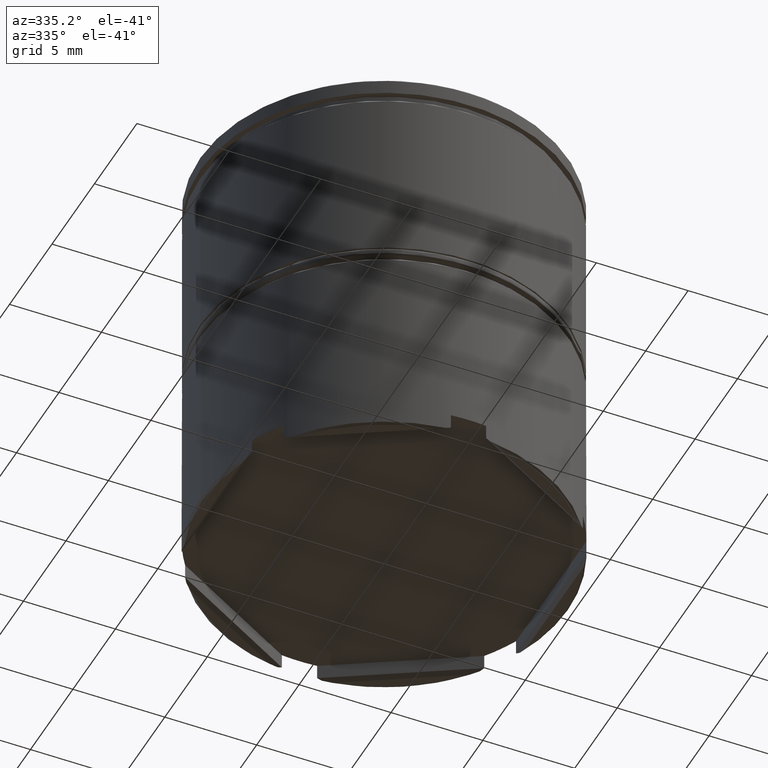
[diagram: clean part render]
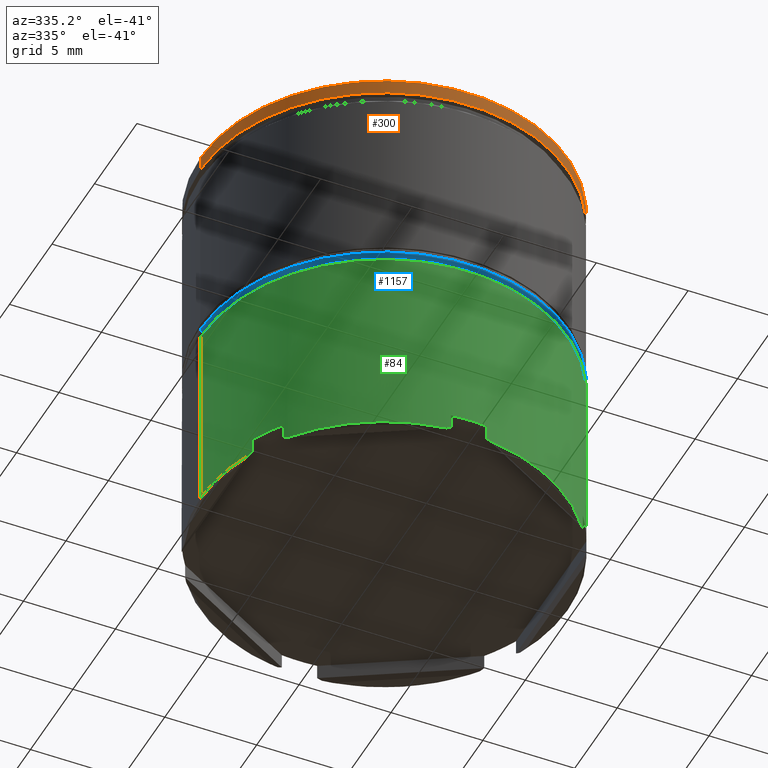
[diagram: same view with three faces highlighted in distinct colors, each labeled with its STEP entity id]
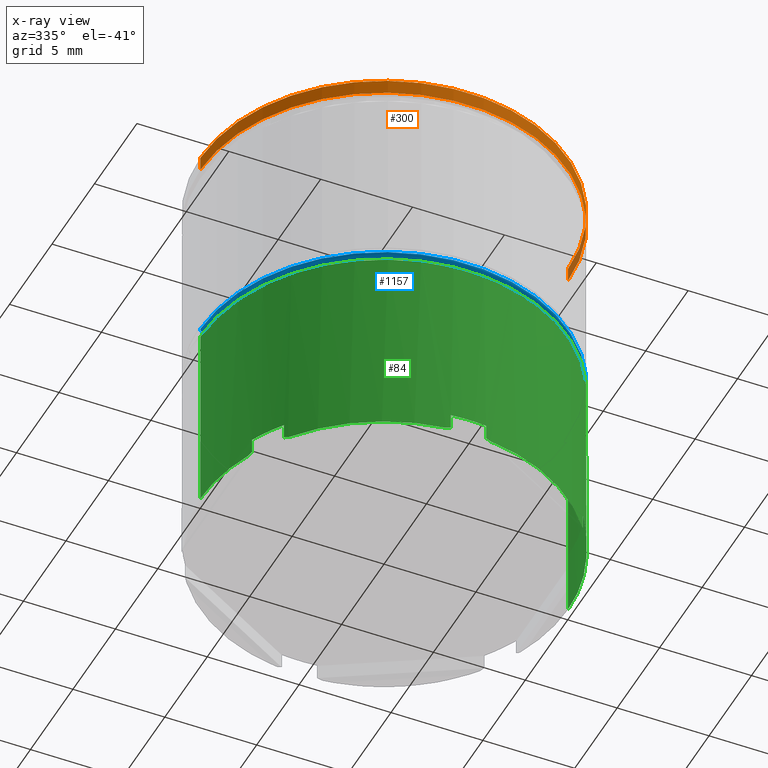
[diagram: x-ray of the same camera — body ghosted, the three highlighted faces saturated]
A machine part, auxiliary view with three faces highlighted in distinct colors.
The next image is the same camera in x-ray (body ghosted, the three faces saturated) — at least one of them is partly hidden behind the body in this view.
Their STEP definitions:

[orange] entity #300 — the highlighted cylindrical surface (partial cylindrical patch) has radius 10 mm, axis along (-0, -0, 1).
#11 = EDGE_CURVE ( 'NONE', #779, #558, #1085, .T. ) ;
#36 = EDGE_CURVE ( 'NONE', #779, #920, #1422, .T. ) ;
#54 = EDGE_CURVE ( 'NONE', #558, #92, #524, .T. ) ;
#92 = VERTEX_POINT ( 'NONE', #667 ) ;
#136 = DIRECTION ( 'NONE',  ( 1.000000000000000000, 0.000000000000000000, 0.000000000000000000 ) ) ;
#148 = EDGE_LOOP ( 'NONE', ( #706, #595, #862, #1581 ) ) ;
#175 = DIRECTION ( 'NONE',  ( 0.000000000000000000, 0.000000000000000000, -1.000000000000000000 ) ) ;
#300 = ADVANCED_FACE ( 'NONE', ( #515 ), #772, .T. ) ;
#388 = AXIS2_PLACEMENT_3D ( 'NONE', #1590, #477, #994 ) ;
#477 = DIRECTION ( 'NONE',  ( -0.000000000000000000, -0.000000000000000000, 1.000000000000000000 ) ) ;
#494 = EDGE_CURVE ( 'NONE', #92, #920, #526, .T. ) ;
#515 = FACE_OUTER_BOUND ( 'NONE', #148, .T. ) ;
#524 = LINE ( 'NONE', #918, #1139 ) ;
#526 = CIRCLE ( 'NONE', #1447, 10.00000000000000000 ) ;
#558 = VERTEX_POINT ( 'NONE', #1318 ) ;
#595 = ORIENTED_EDGE ( 'NONE', *, *, #11, .T. ) ;
#651 = DIRECTION ( 'NONE',  ( -0.000000000000000000, -0.000000000000000000, 1.000000000000000000 ) ) ;
#660 = AXIS2_PLACEMENT_3D ( 'NONE', #911, #933, #136 ) ;
#667 = CARTESIAN_POINT ( 'NONE',  ( 10.00000000000000000, 0.000000000000000000, -0.1000000000000011297 ) ) ;
#706 = ORIENTED_EDGE ( 'NONE', *, *, #36, .F. ) ;
#772 = CYLINDRICAL_SURFACE ( 'NONE', #388, 10.00000000000000000 ) ;
#779 = VERTEX_POINT ( 'NONE', #1127 ) ;
#852 = CARTESIAN_POINT ( 'NONE',  ( -10.00000000000000000, 1.224646799147353256E-15, -0.1000000000000011297 ) ) ;
#862 = ORIENTED_EDGE ( 'NONE', *, *, #54, .T. ) ;
#911 = CARTESIAN_POINT ( 'NONE',  ( 0.000000000000000000, 0.000000000000000000, -0.8749999999999998890 ) ) ;
#918 = CARTESIAN_POINT ( 'NONE',  ( 10.00000000000000000, 0.000000000000000000, 0.000000000000000000 ) ) ;
#920 = VERTEX_POINT ( 'NONE', #852 ) ;
#933 = DIRECTION ( 'NONE',  ( -0.000000000000000000, -0.000000000000000000, 1.000000000000000000 ) ) ;
#984 = VECTOR ( 'NONE', #1027, 1000.000000000000000 ) ;
#994 = DIRECTION ( 'NONE',  ( 1.000000000000000000, 0.000000000000000000, 0.000000000000000000 ) ) ;
#1027 = DIRECTION ( 'NONE',  ( -0.000000000000000000, -0.000000000000000000, 1.000000000000000000 ) ) ;
#1085 = CIRCLE ( 'NONE', #660, 10.00000000000000000 ) ;
#1127 = CARTESIAN_POINT ( 'NONE',  ( -10.00000000000000000, 1.224646799147353256E-15, -0.8749999999999998890 ) ) ;
#1139 = VECTOR ( 'NONE', #651, 1000.000000000000000 ) ;
#1203 = DIRECTION ( 'NONE',  ( 1.000000000000000000, 0.000000000000000000, 0.000000000000000000 ) ) ;
#1318 = CARTESIAN_POINT ( 'NONE',  ( 10.00000000000000000, 0.000000000000000000, -0.8749999999999998890 ) ) ;
#1403 = CARTESIAN_POINT ( 'NONE',  ( -10.00000000000000000, 1.224646799147353256E-15, 0.000000000000000000 ) ) ;
#1422 = LINE ( 'NONE', #1403, #984 ) ;
#1447 = AXIS2_PLACEMENT_3D ( 'NONE', #1452, #175, #1203 ) ;
#1452 = CARTESIAN_POINT ( 'NONE',  ( 0.000000000000000000, 0.000000000000000000, -0.1000000000000011297 ) ) ;
#1581 = ORIENTED_EDGE ( 'NONE', *, *, #494, .T. ) ;
#1590 = CARTESIAN_POINT ( 'NONE',  ( 0.000000000000000000, 0.000000000000000000, 0.000000000000000000 ) ) ;

[blue] entity #1157 — the highlighted toroidal blend (fillet) surface has major radius 9.8 mm and minor (blend) radius 0.2 mm.
#15 = VERTEX_POINT ( 'NONE', #141 ) ;
#81 = CARTESIAN_POINT ( 'NONE',  ( 0.000000000000000000, 0.000000000000000000, -11.49999999999999822 ) ) ;
#141 = CARTESIAN_POINT ( 'NONE',  ( 10.00000000000000000, 0.000000000000000000, -11.29999999999999716 ) ) ;
#176 = TOROIDAL_SURFACE ( 'NONE', #1118, 9.799999999999998934, 0.2000000000000000111 ) ;
#223 = ORIENTED_EDGE ( 'NONE', *, *, #1575, .F. ) ;
#292 = ORIENTED_EDGE ( 'NONE', *, *, #530, .T. ) ;
#362 = DIRECTION ( 'NONE',  ( 0.000000000000000000, 0.000000000000000000, 1.000000000000000000 ) ) ;
#435 = DIRECTION ( 'NONE',  ( 0.000000000000000000, -1.000000000000000000, 0.000000000000000000 ) ) ;
#446 = CIRCLE ( 'NONE', #1377, 9.799999999999998934 ) ;
#465 = DIRECTION ( 'NONE',  ( 1.000000000000000000, 0.000000000000000000, 0.000000000000000000 ) ) ;
#486 = ORIENTED_EDGE ( 'NONE', *, *, #932, .F. ) ;
#497 = CARTESIAN_POINT ( 'NONE',  ( 0.000000000000000000, 0.000000000000000000, -11.29999999999999716 ) ) ;
#530 = EDGE_CURVE ( 'NONE', #726, #15, #746, .T. ) ;
#531 = ORIENTED_EDGE ( 'NONE', *, *, #1437, .F. ) ;
#593 = DIRECTION ( 'NONE',  ( -0.000000000000000000, -0.000000000000000000, -1.000000000000000000 ) ) ;
#629 = DIRECTION ( 'NONE',  ( 1.224646799147353207E-16, 1.000000000000000000, -0.000000000000000000 ) ) ;
#726 = VERTEX_POINT ( 'NONE', #1248 ) ;
#746 = CIRCLE ( 'NONE', #822, 0.2000000000000005107 ) ;
#768 = FACE_OUTER_BOUND ( 'NONE', #1510, .T. ) ;
#771 = CARTESIAN_POINT ( 'NONE',  ( -9.799999999999998934, 1.200153863164406148E-15, -11.29999999999999716 ) ) ;
#822 = AXIS2_PLACEMENT_3D ( 'NONE', #1549, #435, #945 ) ;
#877 = DIRECTION ( 'NONE',  ( 0.000000000000000000, 0.000000000000000000, 1.000000000000000000 ) ) ;
#888 = CIRCLE ( 'NONE', #1089, 10.00000000000000000 ) ;
#902 = CARTESIAN_POINT ( 'NONE',  ( -9.799999999999998934, 1.212400331155879505E-15, -11.49999999999999822 ) ) ;
#932 = EDGE_CURVE ( 'NONE', #726, #1154, #446, .T. ) ;
#945 = DIRECTION ( 'NONE',  ( 0.000000000000000000, 0.000000000000000000, -1.000000000000000000 ) ) ;
#997 = DIRECTION ( 'NONE',  ( 1.000000000000000000, 0.000000000000000000, 0.000000000000000000 ) ) ;
#1075 = VERTEX_POINT ( 'NONE', #1574 ) ;
#1089 = AXIS2_PLACEMENT_3D ( 'NONE', #1365, #877, #997 ) ;
#1118 = AXIS2_PLACEMENT_3D ( 'NONE', #497, #362, #1267 ) ;
#1154 = VERTEX_POINT ( 'NONE', #902 ) ;
#1157 = ADVANCED_FACE ( 'NONE', ( #768 ), #176, .T. ) ;
#1190 = CIRCLE ( 'NONE', #1566, 0.2000000000000005107 ) ;
#1248 = CARTESIAN_POINT ( 'NONE',  ( 9.799999999999998934, 0.000000000000000000, -11.49999999999999822 ) ) ;
#1267 = DIRECTION ( 'NONE',  ( 1.000000000000000000, 0.000000000000000000, 0.000000000000000000 ) ) ;
#1270 = DIRECTION ( 'NONE',  ( -1.000000000000000000, 1.224646799147353207E-16, 0.000000000000000000 ) ) ;
#1365 = CARTESIAN_POINT ( 'NONE',  ( 0.000000000000000000, 0.000000000000000000, -11.29999999999999716 ) ) ;
#1377 = AXIS2_PLACEMENT_3D ( 'NONE', #81, #593, #465 ) ;
#1437 = EDGE_CURVE ( 'NONE', #1154, #1075, #1190, .T. ) ;
#1510 = EDGE_LOOP ( 'NONE', ( #531, #486, #292, #223 ) ) ;
#1549 = CARTESIAN_POINT ( 'NONE',  ( 9.799999999999998934, 0.000000000000000000, -11.29999999999999716 ) ) ;
#1566 = AXIS2_PLACEMENT_3D ( 'NONE', #771, #629, #1270 ) ;
#1574 = CARTESIAN_POINT ( 'NONE',  ( -10.00000000000000000, 1.224646799147353059E-15, -11.29999999999999716 ) ) ;
#1575 = EDGE_CURVE ( 'NONE', #1075, #15, #888, .T. ) ;

[green] entity #84 — the highlighted cylindrical surface (partial cylindrical patch) has radius 10 mm, axis along (-0, -0, 1).
#2 = EDGE_CURVE ( 'NONE', #392, #1269, #130, .T. ) ;
#30 = ORIENTED_EDGE ( 'NONE', *, *, #137, .T. ) ;
#32 = ORIENTED_EDGE ( 'NONE', *, *, #1339, .F. ) ;
#34 = DIRECTION ( 'NONE',  ( 0.000000000000000000, 0.000000000000000000, -1.000000000000000000 ) ) ;
#39 = ORIENTED_EDGE ( 'NONE', *, *, #1000, .T. ) ;
#49 = DIRECTION ( 'NONE',  ( -1.000000000000000000, 0.000000000000000000, 0.000000000000000000 ) ) ;
#57 = CARTESIAN_POINT ( 'NONE',  ( -0.9593872389242613652, -9.953872418601180883, -22.30000000000000071 ) ) ;
#60 = DIRECTION ( 'NONE',  ( -0.000000000000000000, -0.000000000000000000, 1.000000000000000000 ) ) ;
#61 = CARTESIAN_POINT ( 'NONE',  ( 8.092607391896345703, -5.875077680974853500, -22.33427021687936076 ) ) ;
#68 = EDGE_LOOP ( 'NONE', ( #622, #761, #455, #210, #1524, #32, #568, #30, #434, #791, #659, #1018, #464, #867, #1446, #1632, #1591, #1095, #189, #1579, #805, #39 ) ) ;
#70 = CARTESIAN_POINT ( 'NONE',  ( 0.000000000000000000, 0.000000000000000000, -22.39999999999999858 ) ) ;
#72 = CIRCLE ( 'NONE', #213, 10.00000000000000000 ) ;
#84 = ADVANCED_FACE ( 'NONE', ( #657 ), #1296, .T. ) ;
#88 = VERTEX_POINT ( 'NONE', #152 ) ;
#90 = CARTESIAN_POINT ( 'NONE',  ( 9.134270216879359694, -4.070864743748543901, -22.33427021687936431 ) ) ;
#111 = CARTESIAN_POINT ( 'NONE',  ( 9.199999999999997513, -3.919183588453090561, -22.39999999999999858 ) ) ;
#114 = CARTESIAN_POINT ( 'NONE',  ( -9.134270216879361470, -4.070864743748538572, -22.33427021687936431 ) ) ;
#116 = VERTEX_POINT ( 'NONE', #1260 ) ;
#128 = CARTESIAN_POINT ( 'NONE',  ( 1.205887450304572450, -9.927025509043378548, -22.39999999999999858 ) ) ;
#130 = CIRCLE ( 'NONE', #240, 10.00000000000000000 ) ;
#137 = EDGE_CURVE ( 'NONE', #1140, #153, #1158, .T. ) ;
#144 = EDGE_CURVE ( 'NONE', #1231, #1140, #347, .T. ) ;
#152 = CARTESIAN_POINT ( 'NONE',  ( -9.100000000000003197, -4.146082488325570026, -21.50000000000000000 ) ) ;
#153 = VERTEX_POINT ( 'NONE', #843 ) ;
#189 = ORIENTED_EDGE ( 'NONE', *, *, #905, .T. ) ;
#202 = DIRECTION ( 'NONE',  ( -1.000000000000000000, 0.000000000000000000, 0.000000000000000000 ) ) ;
#210 = ORIENTED_EDGE ( 'NONE', *, *, #1189, .F. ) ;
#213 = AXIS2_PLACEMENT_3D ( 'NONE', #224, #1363, #233 ) ;
#224 = CARTESIAN_POINT ( 'NONE',  ( 0.000000000000000000, 0.000000000000000000, -21.50000000000000000 ) ) ;
#227 = CARTESIAN_POINT ( 'NONE',  ( 0.9593872389242583676, -9.953872418601179106, -22.30000000000000071 ) ) ;
#233 = DIRECTION ( 'NONE',  ( -1.000000000000000000, 0.000000000000000000, 0.000000000000000000 ) ) ;
#234 = EDGE_CURVE ( 'NONE', #88, #851, #949, .T. ) ;
#238 = DIRECTION ( 'NONE',  ( -0.000000000000000000, -0.000000000000000000, 1.000000000000000000 ) ) ;
#240 = AXIS2_PLACEMENT_3D ( 'NONE', #408, #647, #923 ) ;
#246 = AXIS2_PLACEMENT_3D ( 'NONE', #70, #813, #202 ) ;
#259 = CARTESIAN_POINT ( 'NONE',  ( 1.205887450304572450, -9.927025509043378548, -22.39999999999999858 ) ) ;
#260 = VERTEX_POINT ( 'NONE', #1094 ) ;
#263 = DIRECTION ( 'NONE',  ( 0.000000000000000000, 0.000000000000000000, -1.000000000000000000 ) ) ;
#265 = AXIS2_PLACEMENT_3D ( 'NONE', #1197, #335, #1105 ) ;
#269 = CARTESIAN_POINT ( 'NONE',  ( 0.9593872389242583676, -9.953872418601179106, 0.000000000000000000 ) ) ;
#270 = AXIS2_PLACEMENT_3D ( 'NONE', #420, #873, #1369 ) ;
#282 = VERTEX_POINT ( 'NONE', #884 ) ;
#284 = DIRECTION ( 'NONE',  ( -0.000000000000000000, -0.000000000000000000, 1.000000000000000000 ) ) ;
#290 = CARTESIAN_POINT ( 'NONE',  ( 0.9593872389242583676, -9.953872418601179106, -22.30000000000000071 ) ) ;
#295 = CARTESIAN_POINT ( 'NONE',  ( 1.123833772376130691, -9.936992996320922700, -22.36760525823003221 ) ) ;
#306 = CARTESIAN_POINT ( 'NONE',  ( -1.123833772376140905, -9.936992996320919147, -22.36760525823002865 ) ) ;
#309 = VERTEX_POINT ( 'NONE', #1238 ) ;
#311 = DIRECTION ( 'NONE',  ( 1.000000000000000000, 0.000000000000000000, 0.000000000000000000 ) ) ;
#318 = CIRCLE ( 'NONE', #1599, 10.00000000000000000 ) ;
#322 = EDGE_CURVE ( 'NONE', #426, #1624, #1606, .T. ) ;
#329 = LINE ( 'NONE', #439, #1427 ) ;
#335 = DIRECTION ( 'NONE',  ( -0.000000000000000000, -0.000000000000000000, 1.000000000000000000 ) ) ;
#347 =( BOUNDED_CURVE ( )  B_SPLINE_CURVE ( 3, ( #598, #1583, #574, #467 ),
 .UNSPECIFIED., .F., .T. ) 
 B_SPLINE_CURVE_WITH_KNOTS ( ( 4, 4 ),
 ( 2.714080388644925179, 2.738876812009133133 ),
 .UNSPECIFIED. ) 
 CURVE ( )  GEOMETRIC_REPRESENTATION_ITEM ( )  RATIONAL_B_SPLINE_CURVE ( ( 1.000000000000000000, 0.9999487621053724240, 0.9999487621053724240, 1.000000000000000000 ) ) 
 REPRESENTATION_ITEM ( '' )  );
#351 = CARTESIAN_POINT ( 'NONE',  ( 10.00000000000000000, 0.000000000000000000, -22.39999999999999858 ) ) ;
#355 = CARTESIAN_POINT ( 'NONE',  ( -9.167605258230031140, -3.995227901651832614, -22.36760525823003221 ) ) ;
#371 = LINE ( 'NONE', #1386, #389 ) ;
#378 = LINE ( 'NONE', #896, #1514 ) ;
#379 = EDGE_CURVE ( 'NONE', #786, #1351, #1401, .T. ) ;
#389 = VECTOR ( 'NONE', #694, 1000.000000000000000 ) ;
#392 = VERTEX_POINT ( 'NONE', #128 ) ;
#398 = DIRECTION ( 'NONE',  ( -0.000000000000000000, -0.000000000000000000, 1.000000000000000000 ) ) ;
#408 = CARTESIAN_POINT ( 'NONE',  ( 0.000000000000000000, 0.000000000000000000, -22.39999999999999858 ) ) ;
#420 = CARTESIAN_POINT ( 'NONE',  ( 0.000000000000000000, 0.000000000000000000, -21.50000000000000000 ) ) ;
#421 = DIRECTION ( 'NONE',  ( 0.000000000000000000, 0.000000000000000000, -1.000000000000000000 ) ) ;
#426 = VERTEX_POINT ( 'NONE', #1168 ) ;
#434 = ORIENTED_EDGE ( 'NONE', *, *, #461, .T. ) ;
#439 = CARTESIAN_POINT ( 'NONE',  ( -0.9593872389242613652, -9.953872418601180883, 0.000000000000000000 ) ) ;
#454 = LINE ( 'NONE', #537, #642 ) ;
#455 = ORIENTED_EDGE ( 'NONE', *, *, #1629, .T. ) ;
#460 = CARTESIAN_POINT ( 'NONE',  ( 0.000000000000000000, 0.000000000000000000, -11.80000000000000071 ) ) ;
#461 = EDGE_CURVE ( 'NONE', #153, #309, #703, .T. ) ;
#464 = ORIENTED_EDGE ( 'NONE', *, *, #1461, .T. ) ;
#467 = CARTESIAN_POINT ( 'NONE',  ( -7.994112549695421954, -6.007841920590299978, -22.39999999999999858 ) ) ;
#468 = VERTEX_POINT ( 'NONE', #581 ) ;
#503 = CARTESIAN_POINT ( 'NONE',  ( -7.994112549695421954, -6.007841920590299978, -22.39999999999999858 ) ) ;
#511 = CIRCLE ( 'NONE', #246, 10.00000000000000000 ) ;
#514 = LINE ( 'NONE', #1020, #1123 ) ;
#523 =( BOUNDED_CURVE ( )  B_SPLINE_CURVE ( 3, ( #1213, #702, #61, #1563 ),
 .UNSPECIFIED., .F., .T. ) 
 B_SPLINE_CURVE_WITH_KNOTS ( ( 4, 4 ),
 ( 3.544308495170454432, 3.569104918534661941 ),
 .UNSPECIFIED. ) 
 CURVE ( )  GEOMETRIC_REPRESENTATION_ITEM ( )  RATIONAL_B_SPLINE_CURVE ( ( 1.000000000000000000, 0.9999487621053724240, 0.9999487621053724240, 1.000000000000000000 ) ) 
 REPRESENTATION_ITEM ( '' )  );
#528 = VECTOR ( 'NONE', #60, 1000.000000000000000 ) ;
#535 = CARTESIAN_POINT ( 'NONE',  ( 0.000000000000000000, 0.000000000000000000, 0.000000000000000000 ) ) ;
#537 = CARTESIAN_POINT ( 'NONE',  ( 9.100000000000001421, -4.146082488325571802, 0.000000000000000000 ) ) ;
#551 = CIRCLE ( 'NONE', #797, 10.00000000000000000 ) ;
#567 = CARTESIAN_POINT ( 'NONE',  ( -0.9593872389242613652, -9.953872418601180883, -21.50000000000000000 ) ) ;
#568 = ORIENTED_EDGE ( 'NONE', *, *, #144, .T. ) ;
#574 = CARTESIAN_POINT ( 'NONE',  ( -8.043771485853893566, -5.941765094669095859, -22.36760525823002865 ) ) ;
#581 = CARTESIAN_POINT ( 'NONE',  ( -9.100000000000003197, -4.146082488325570026, -22.30000000000000426 ) ) ;
#587 = CARTESIAN_POINT ( 'NONE',  ( 0.9593872389242552590, -9.953872418601180883, -21.50000000000000000 ) ) ;
#592 = VERTEX_POINT ( 'NONE', #567 ) ;
#598 = CARTESIAN_POINT ( 'NONE',  ( -8.140612761075741943, -5.807789930275611745, -22.30000000000000071 ) ) ;
#622 = ORIENTED_EDGE ( 'NONE', *, *, #322, .F. ) ;
#636 =( BOUNDED_CURVE ( )  B_SPLINE_CURVE ( 3, ( #290, #670, #295, #259 ),
 .UNSPECIFIED., .F., .T. ) 
 B_SPLINE_CURVE_WITH_KNOTS ( ( 4, 4 ),
 ( 2.714080388644924735, 2.738876812009132244 ),
 .UNSPECIFIED. ) 
 CURVE ( )  GEOMETRIC_REPRESENTATION_ITEM ( )  RATIONAL_B_SPLINE_CURVE ( ( 1.000000000000000000, 0.9999487621053724240, 0.9999487621053724240, 1.000000000000000000 ) ) 
 REPRESENTATION_ITEM ( '' )  );
#640 = VECTOR ( 'NONE', #238, 1000.000000000000000 ) ;
#642 = VECTOR ( 'NONE', #1462, 1000.000000000000000 ) ;
#647 = DIRECTION ( 'NONE',  ( -0.000000000000000000, -0.000000000000000000, 1.000000000000000000 ) ) ;
#657 = FACE_OUTER_BOUND ( 'NONE', #68, .T. ) ;
#659 = ORIENTED_EDGE ( 'NONE', *, *, #1130, .T. ) ;
#670 = CARTESIAN_POINT ( 'NONE',  ( 1.041662824983015545, -9.945942424723392961, -22.33427021687936076 ) ) ;
#672 = VERTEX_POINT ( 'NONE', #1567 ) ;
#677 = EDGE_CURVE ( 'NONE', #116, #672, #454, .T. ) ;
#693 = CARTESIAN_POINT ( 'NONE',  ( 8.140612761075740167, -5.807789930275612633, -22.30000000000000071 ) ) ;
#694 = DIRECTION ( 'NONE',  ( 0.000000000000000000, 0.000000000000000000, -1.000000000000000000 ) ) ;
#702 = CARTESIAN_POINT ( 'NONE',  ( 8.043771485853898895, -5.941765094669091418, -22.36760525823003221 ) ) ;
#703 =( BOUNDED_CURVE ( )  B_SPLINE_CURVE ( 3, ( #1193, #306, #1330, #57 ),
 .UNSPECIFIED., .F., .T. ) 
 B_SPLINE_CURVE_WITH_KNOTS ( ( 4, 4 ),
 ( 3.544308495170453099, 3.569104918534661497 ),
 .UNSPECIFIED. ) 
 CURVE ( )  GEOMETRIC_REPRESENTATION_ITEM ( )  RATIONAL_B_SPLINE_CURVE ( ( 1.000000000000000000, 0.9999487621053724240, 0.9999487621053724240, 1.000000000000000000 ) ) 
 REPRESENTATION_ITEM ( '' )  );
#729 = DIRECTION ( 'NONE',  ( -0.000000000000000000, -0.000000000000000000, 1.000000000000000000 ) ) ;
#739 = VERTEX_POINT ( 'NONE', #111 ) ;
#761 = ORIENTED_EDGE ( 'NONE', *, *, #1317, .T. ) ;
#786 = VERTEX_POINT ( 'NONE', #227 ) ;
#791 = ORIENTED_EDGE ( 'NONE', *, *, #1006, .F. ) ;
#794 = AXIS2_PLACEMENT_3D ( 'NONE', #535, #398, #1414 ) ;
#795 = CARTESIAN_POINT ( 'NONE',  ( -8.140612761075741943, -5.807789930275611745, -22.30000000000000071 ) ) ;
#797 = AXIS2_PLACEMENT_3D ( 'NONE', #460, #34, #311 ) ;
#805 = ORIENTED_EDGE ( 'NONE', *, *, #1498, .T. ) ;
#807 = CARTESIAN_POINT ( 'NONE',  ( 0.000000000000000000, 0.000000000000000000, -22.39999999999999858 ) ) ;
#813 = DIRECTION ( 'NONE',  ( -0.000000000000000000, -0.000000000000000000, 1.000000000000000000 ) ) ;
#843 = CARTESIAN_POINT ( 'NONE',  ( -1.205887450304584885, -9.927025509043376772, -22.39999999999999858 ) ) ;
#851 = VERTEX_POINT ( 'NONE', #1072 ) ;
#867 = ORIENTED_EDGE ( 'NONE', *, *, #2, .T. ) ;
#873 = DIRECTION ( 'NONE',  ( -0.000000000000000000, -0.000000000000000000, 1.000000000000000000 ) ) ;
#881 = CARTESIAN_POINT ( 'NONE',  ( 9.199999999999997513, -3.919183588453090561, -22.39999999999999858 ) ) ;
#883 =( BOUNDED_CURVE ( )  B_SPLINE_CURVE ( 3, ( #1228, #90, #1459, #881 ),
 .UNSPECIFIED., .F., .T. ) 
 B_SPLINE_CURVE_WITH_KNOTS ( ( 4, 4 ),
 ( 2.714080388644924291, 2.738876812009131356 ),
 .UNSPECIFIED. ) 
 CURVE ( )  GEOMETRIC_REPRESENTATION_ITEM ( )  RATIONAL_B_SPLINE_CURVE ( ( 1.000000000000000000, 0.9999487621053724240, 0.9999487621053724240, 1.000000000000000000 ) ) 
 REPRESENTATION_ITEM ( '' )  );
#884 = CARTESIAN_POINT ( 'NONE',  ( 10.00000000000000000, 0.000000000000000000, -11.80000000000000071 ) ) ;
#896 = CARTESIAN_POINT ( 'NONE',  ( 10.00000000000000000, 0.000000000000000000, 0.000000000000000000 ) ) ;
#904 = VECTOR ( 'NONE', #1389, 1000.000000000000000 ) ;
#905 = EDGE_CURVE ( 'NONE', #116, #739, #883, .T. ) ;
#923 = DIRECTION ( 'NONE',  ( -1.000000000000000000, 0.000000000000000000, 0.000000000000000000 ) ) ;
#949 = CIRCLE ( 'NONE', #1345, 10.00000000000000000 ) ;
#965 = VERTEX_POINT ( 'NONE', #351 ) ;
#983 = CARTESIAN_POINT ( 'NONE',  ( -10.00000000000000000, 1.224646799147353256E-15, -11.80000000000000071 ) ) ;
#1000 = EDGE_CURVE ( 'NONE', #282, #1624, #551, .T. ) ;
#1006 = EDGE_CURVE ( 'NONE', #592, #309, #329, .T. ) ;
#1018 = ORIENTED_EDGE ( 'NONE', *, *, #379, .F. ) ;
#1020 = CARTESIAN_POINT ( 'NONE',  ( 8.140612761075740167, -5.807789930275612633, 0.000000000000000000 ) ) ;
#1023 = EDGE_CURVE ( 'NONE', #1269, #1393, #523, .T. ) ;
#1066 = CIRCLE ( 'NONE', #270, 10.00000000000000000 ) ;
#1068 = CARTESIAN_POINT ( 'NONE',  ( 7.994112549695425507, -6.007841920590296425, -22.39999999999999858 ) ) ;
#1072 = CARTESIAN_POINT ( 'NONE',  ( -8.140612761075741943, -5.807789930275611745, -21.50000000000000000 ) ) ;
#1094 = CARTESIAN_POINT ( 'NONE',  ( 8.140612761075741943, -5.807789930275610857, -21.50000000000000000 ) ) ;
#1095 = ORIENTED_EDGE ( 'NONE', *, *, #677, .F. ) ;
#1105 = DIRECTION ( 'NONE',  ( -1.000000000000000000, 0.000000000000000000, 0.000000000000000000 ) ) ;
#1123 = VECTOR ( 'NONE', #263, 1000.000000000000000 ) ;
#1130 = EDGE_CURVE ( 'NONE', #592, #1351, #72, .T. ) ;
#1132 = CARTESIAN_POINT ( 'NONE',  ( -10.00000000000000000, 1.224646799147353256E-15, 0.000000000000000000 ) ) ;
#1140 = VERTEX_POINT ( 'NONE', #503 ) ;
#1144 =( BOUNDED_CURVE ( )  B_SPLINE_CURVE ( 3, ( #1347, #355, #114, #1253 ),
 .UNSPECIFIED., .F., .T. ) 
 B_SPLINE_CURVE_WITH_KNOTS ( ( 4, 4 ),
 ( 3.544308495170454432, 3.569104918534661497 ),
 .UNSPECIFIED. ) 
 CURVE ( )  GEOMETRIC_REPRESENTATION_ITEM ( )  RATIONAL_B_SPLINE_CURVE ( ( 1.000000000000000000, 0.9999487621053724240, 0.9999487621053724240, 1.000000000000000000 ) ) 
 REPRESENTATION_ITEM ( '' )  );
#1158 = CIRCLE ( 'NONE', #265, 10.00000000000000000 ) ;
#1164 = DIRECTION ( 'NONE',  ( -1.000000000000000000, 3.552713678800500929E-15, 0.000000000000000000 ) ) ;
#1168 = CARTESIAN_POINT ( 'NONE',  ( -10.00000000000000000, 1.224646799147353256E-15, -22.39999999999999858 ) ) ;
#1171 = VERTEX_POINT ( 'NONE', #1246 ) ;
#1186 = LINE ( 'NONE', #1333, #528 ) ;
#1189 = EDGE_CURVE ( 'NONE', #88, #468, #371, .T. ) ;
#1193 = CARTESIAN_POINT ( 'NONE',  ( -1.205887450304584885, -9.927025509043376772, -22.39999999999999858 ) ) ;
#1197 = CARTESIAN_POINT ( 'NONE',  ( 0.000000000000000000, 0.000000000000000000, -22.39999999999999858 ) ) ;
#1213 = CARTESIAN_POINT ( 'NONE',  ( 7.994112549695425507, -6.007841920590296425, -22.39999999999999858 ) ) ;
#1228 = CARTESIAN_POINT ( 'NONE',  ( 9.100000000000001421, -4.146082488325571802, -22.30000000000000426 ) ) ;
#1231 = VERTEX_POINT ( 'NONE', #795 ) ;
#1233 = EDGE_CURVE ( 'NONE', #739, #965, #318, .T. ) ;
#1238 = CARTESIAN_POINT ( 'NONE',  ( -0.9593872389242613652, -9.953872418601180883, -22.30000000000000071 ) ) ;
#1246 = CARTESIAN_POINT ( 'NONE',  ( -9.199999999999999289, -3.919183588453087008, -22.39999999999999858 ) ) ;
#1253 = CARTESIAN_POINT ( 'NONE',  ( -9.100000000000003197, -4.146082488325570026, -22.30000000000000426 ) ) ;
#1260 = CARTESIAN_POINT ( 'NONE',  ( 9.100000000000001421, -4.146082488325571802, -22.30000000000000426 ) ) ;
#1269 = VERTEX_POINT ( 'NONE', #1068 ) ;
#1296 = CYLINDRICAL_SURFACE ( 'NONE', #794, 10.00000000000000000 ) ;
#1317 = EDGE_CURVE ( 'NONE', #426, #1171, #511, .T. ) ;
#1323 = CARTESIAN_POINT ( 'NONE',  ( 0.000000000000000000, 0.000000000000000000, -21.50000000000000000 ) ) ;
#1330 = CARTESIAN_POINT ( 'NONE',  ( -1.041662824983022650, -9.945942424723391184, -22.33427021687935721 ) ) ;
#1333 = CARTESIAN_POINT ( 'NONE',  ( -8.140612761075741943, -5.807789930275611745, 0.000000000000000000 ) ) ;
#1339 = EDGE_CURVE ( 'NONE', #1231, #851, #1186, .T. ) ;
#1345 = AXIS2_PLACEMENT_3D ( 'NONE', #1323, #729, #49 ) ;
#1347 = CARTESIAN_POINT ( 'NONE',  ( -9.199999999999999289, -3.919183588453087008, -22.39999999999999858 ) ) ;
#1351 = VERTEX_POINT ( 'NONE', #587 ) ;
#1363 = DIRECTION ( 'NONE',  ( -0.000000000000000000, -0.000000000000000000, 1.000000000000000000 ) ) ;
#1369 = DIRECTION ( 'NONE',  ( -1.000000000000000000, 0.000000000000000000, 0.000000000000000000 ) ) ;
#1386 = CARTESIAN_POINT ( 'NONE',  ( -9.100000000000003197, -4.146082488325570026, 0.000000000000000000 ) ) ;
#1389 = DIRECTION ( 'NONE',  ( -0.000000000000000000, -0.000000000000000000, 1.000000000000000000 ) ) ;
#1393 = VERTEX_POINT ( 'NONE', #693 ) ;
#1401 = LINE ( 'NONE', #269, #904 ) ;
#1414 = DIRECTION ( 'NONE',  ( 1.000000000000000000, 0.000000000000000000, 0.000000000000000000 ) ) ;
#1418 = EDGE_CURVE ( 'NONE', #260, #672, #1066, .T. ) ;
#1427 = VECTOR ( 'NONE', #421, 1000.000000000000000 ) ;
#1432 = EDGE_CURVE ( 'NONE', #260, #1393, #514, .T. ) ;
#1442 = DIRECTION ( 'NONE',  ( -0.000000000000000000, -0.000000000000000000, 1.000000000000000000 ) ) ;
#1446 = ORIENTED_EDGE ( 'NONE', *, *, #1023, .T. ) ;
#1459 = CARTESIAN_POINT ( 'NONE',  ( 9.167605258230029364, -3.995227901651837943, -22.36760525823003576 ) ) ;
#1461 = EDGE_CURVE ( 'NONE', #786, #392, #636, .T. ) ;
#1462 = DIRECTION ( 'NONE',  ( -0.000000000000000000, -0.000000000000000000, 1.000000000000000000 ) ) ;
#1498 = EDGE_CURVE ( 'NONE', #965, #282, #378, .T. ) ;
#1514 = VECTOR ( 'NONE', #1442, 1000.000000000000000 ) ;
#1524 = ORIENTED_EDGE ( 'NONE', *, *, #234, .T. ) ;
#1563 = CARTESIAN_POINT ( 'NONE',  ( 8.140612761075740167, -5.807789930275612633, -22.30000000000000071 ) ) ;
#1567 = CARTESIAN_POINT ( 'NONE',  ( 9.100000000000001421, -4.146082488325571802, -21.50000000000000000 ) ) ;
#1579 = ORIENTED_EDGE ( 'NONE', *, *, #1233, .T. ) ;
#1583 = CARTESIAN_POINT ( 'NONE',  ( -8.092607391896340374, -5.875077680974857053, -22.33427021687935721 ) ) ;
#1591 = ORIENTED_EDGE ( 'NONE', *, *, #1418, .T. ) ;
#1599 = AXIS2_PLACEMENT_3D ( 'NONE', #807, #284, #1164 ) ;
#1606 = LINE ( 'NONE', #1132, #640 ) ;
#1624 = VERTEX_POINT ( 'NONE', #983 ) ;
#1629 = EDGE_CURVE ( 'NONE', #1171, #468, #1144, .T. ) ;
#1632 = ORIENTED_EDGE ( 'NONE', *, *, #1432, .F. ) ;